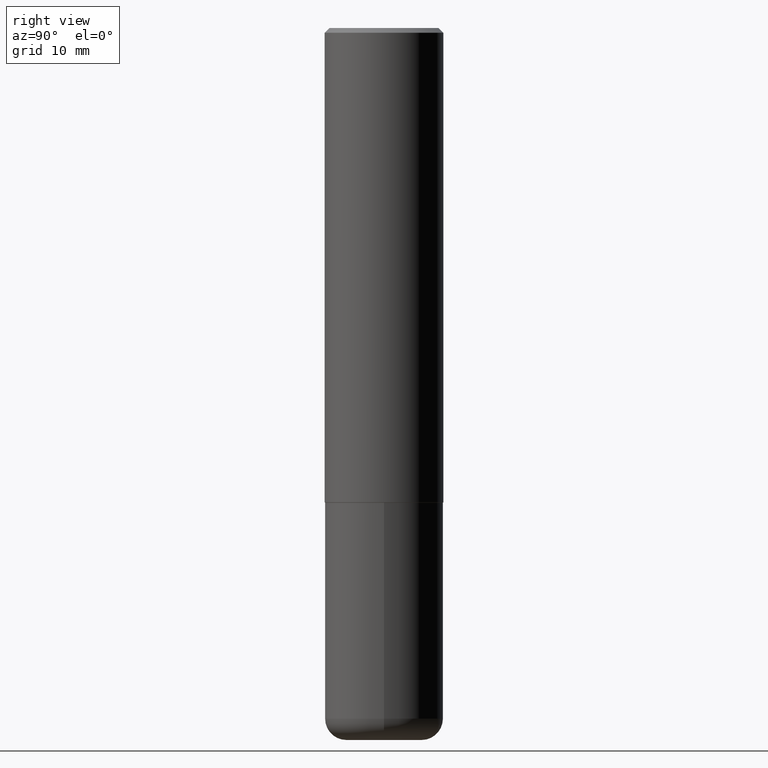
[diagram: clean part render]
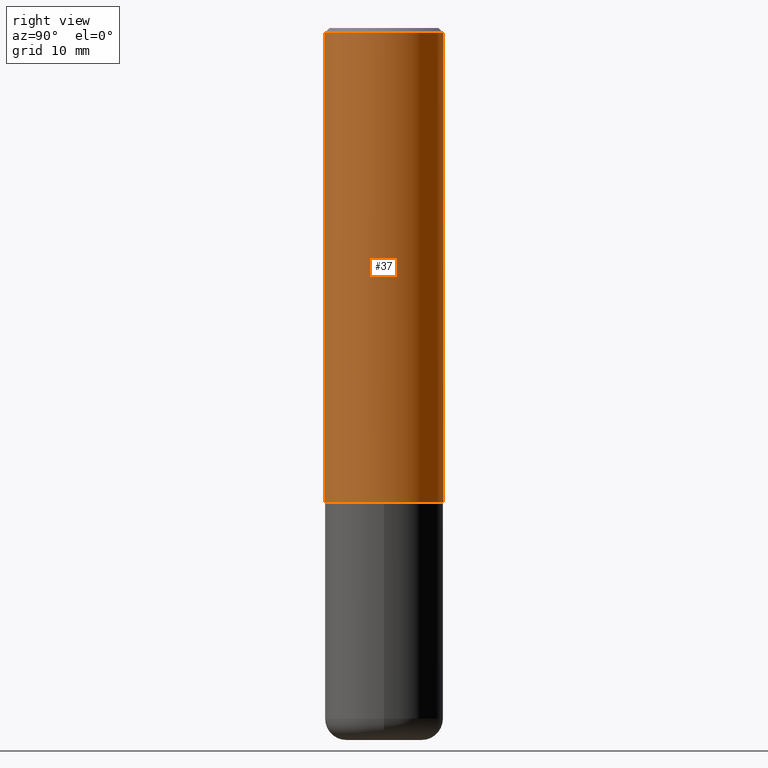
[diagram: same view with one face highlighted and labeled with its STEP entity id]
A machine part, right view. The second image highlights one B-rep face of the part: STEP entity #37.
In plain terms, the highlighted cylindrical surface (partial cylindrical patch) has radius 6.35 mm, axis along (-0, 0, 1).
Its self-contained STEP definition (entity closure, byte-faithful):
#21 = EDGE_CURVE ( 'NONE', #285, #309, #352, .T. ) ;
#32 = CIRCLE ( 'NONE', #104, 0.2500000000000002220 ) ;
#34 = DIRECTION ( 'NONE',  ( -2.445962445609187395E-29, 3.490774419091693439E-15, 1.000000000000000000 ) ) ;
#35 = CARTESIAN_POINT ( 'NONE',  ( 4.891924891218388487E-31, -6.981548838183405960E-17, -0.02000000000000005593 ) ) ;
#37 = ADVANCED_FACE ( 'NONE', ( #256 ), #329, .T. ) ;
#48 = EDGE_LOOP ( 'NONE', ( #377, #297, #247, #98 ) ) ;
#50 = CIRCLE ( 'NONE', #299, 0.2500000000000000000 ) ;
#61 = CARTESIAN_POINT ( 'NONE',  ( 1.745740669421566875E-15, 0.2499999999999999167, -0.02000000000000092676 ) ) ;
#82 = DIRECTION ( 'NONE',  ( -2.445962445609187114E-29, 3.490774419091693439E-15, 1.000000000000000000 ) ) ;
#89 = DIRECTION ( 'NONE',  ( -2.445962445609187395E-29, 3.490774419091693439E-15, 1.000000000000000000 ) ) ;
#90 = CARTESIAN_POINT ( 'NONE',  ( -1.715124499442882299E-15, -0.2500000000000000555, -0.01999999999999918510 ) ) ;
#98 = ORIENTED_EDGE ( 'NONE', *, *, #110, .F. ) ;
#104 = AXIS2_PLACEMENT_3D ( 'NONE', #310, #214, #312 ) ;
#110 = EDGE_CURVE ( 'NONE', #382, #189, #155, .T. ) ;
#129 = DIRECTION ( 'NONE',  ( -6.982962677686266711E-15, -1.000000000000000000, 3.490774419091693834E-15 ) ) ;
#139 = DIRECTION ( 'NONE',  ( -6.982962677686265922E-15, -1.000000000000000000, 3.483106191921935554E-15 ) ) ;
#146 = VECTOR ( 'NONE', #82, 39.37007874015748143 ) ;
#155 = LINE ( 'NONE', #185, #146 ) ;
#165 = AXIS2_PLACEMENT_3D ( 'NONE', #389, #89, #129 ) ;
#185 = CARTESIAN_POINT ( 'NONE',  ( -1.745740669421567467E-15, -0.2500000000000001110, 8.726936047729238529E-16 ) ) ;
#189 = VERTEX_POINT ( 'NONE', #90 ) ;
#214 = DIRECTION ( 'NONE',  ( -2.445962445609187395E-29, 3.490774419091693439E-15, 1.000000000000000000 ) ) ;
#247 = ORIENTED_EDGE ( 'NONE', *, *, #361, .F. ) ;
#256 = FACE_OUTER_BOUND ( 'NONE', #48, .T. ) ;
#258 = CARTESIAN_POINT ( 'NONE',  ( 1.776356839400251254E-15, 0.2500000000000001110, -8.726936047729238529E-16 ) ) ;
#263 = CARTESIAN_POINT ( 'NONE',  ( 1.776356839400276497E-15, 0.2499999999999933109, -1.999000000000000998 ) ) ;
#269 = CARTESIAN_POINT ( 'NONE',  ( -1.745740669421519149E-15, -0.2500000000000072164, -1.998999999999999444 ) ) ;
#285 = VERTEX_POINT ( 'NONE', #263 ) ;
#297 = ORIENTED_EDGE ( 'NONE', *, *, #21, .T. ) ;
#298 = VECTOR ( 'NONE', #381, 39.37007874015748143 ) ;
#299 = AXIS2_PLACEMENT_3D ( 'NONE', #35, #34, #139 ) ;
#309 = VERTEX_POINT ( 'NONE', #61 ) ;
#310 = CARTESIAN_POINT ( 'NONE',  ( 4.889478928772765840E-29, -6.978058063764295922E-15, -1.999000000000000110 ) ) ;
#312 = DIRECTION ( 'NONE',  ( -6.982962677686266711E-15, -1.000000000000000000, 3.278217592397113101E-15 ) ) ;
#329 = CYLINDRICAL_SURFACE ( 'NONE', #165, 0.2500000000000001110 ) ;
#352 = LINE ( 'NONE', #258, #298 ) ;
#361 = EDGE_CURVE ( 'NONE', #189, #309, #50, .T. ) ;
#377 = ORIENTED_EDGE ( 'NONE', *, *, #391, .T. ) ;
#381 = DIRECTION ( 'NONE',  ( -2.445962445609187114E-29, 3.490774419091693439E-15, 1.000000000000000000 ) ) ;
#382 = VERTEX_POINT ( 'NONE', #269 ) ;
#389 = CARTESIAN_POINT ( 'NONE',  ( 0.000000000000000000, 0.000000000000000000, 0.000000000000000000 ) ) ;
#391 = EDGE_CURVE ( 'NONE', #382, #285, #32, .T. ) ;